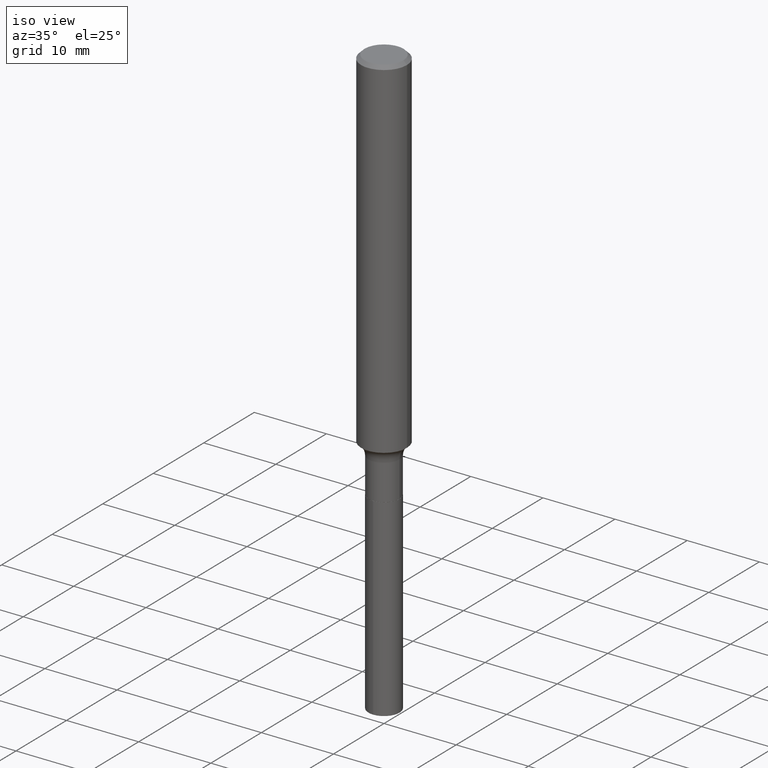
[diagram: clean part render]
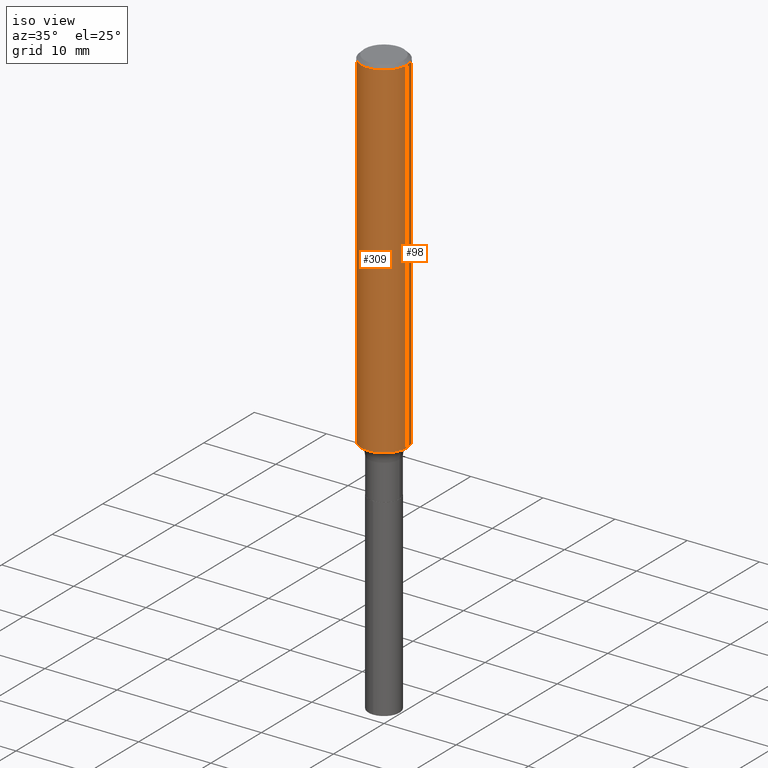
[diagram: same view with one multi-face feature highlighted, each face labeled with its STEP entity id]
A machine part, iso view. The highlighted faces form ONE feature: a constant-radius fillet chain: 2 tangent blend faces with common blend radius 3.175 mm. The faces share edges in the B-rep.
Their STEP definitions:
[1] entity #309 (Cylinder):
#22 = DIRECTION ( 'NONE',  ( -2.445468806185136597E-29, 3.491481338843145583E-15, 1.000000000000000000 ) ) ;
#40 = CARTESIAN_POINT ( 'NONE',  ( 0.1250000000000000000, -9.383356098140928781E-16, -0.01875000000000014155 ) ) ;
#49 = ORIENTED_EDGE ( 'NONE', *, *, #423, .F. ) ;
#75 = VECTOR ( 'NONE', #108, 39.37007874015748143 ) ;
#82 = AXIS2_PLACEMENT_3D ( 'NONE', #107, #147, #187 ) ;
#87 = ORIENTED_EDGE ( 'NONE', *, *, #302, .T. ) ;
#88 = DIRECTION ( 'NONE',  ( -2.445468806185136597E-29, 3.491481338843145583E-15, 1.000000000000000000 ) ) ;
#93 = CYLINDRICAL_SURFACE ( 'NONE', #468, 0.1250000000000001110 ) ;
#107 = CARTESIAN_POINT ( 'NONE',  ( 4.585254011597165626E-31, -6.546527510330947764E-17, -0.01875000000000014155 ) ) ;
#108 = DIRECTION ( 'NONE',  ( -2.445468806185136877E-29, 3.491481338843145188E-15, 1.000000000000000000 ) ) ;
#136 = LINE ( 'NONE', #415, #75 ) ;
#143 = VERTEX_POINT ( 'NONE', #232 ) ;
#147 = DIRECTION ( 'NONE',  ( -2.445468806185136597E-29, 3.491481338843145583E-15, 1.000000000000000000 ) ) ;
#187 = DIRECTION ( 'NONE',  ( 1.000000000000000000, -6.982962677686266711E-15, 0.000000000000000000 ) ) ;
#188 = VECTOR ( 'NONE', #202, 39.37007874015748143 ) ;
#197 = VERTEX_POINT ( 'NONE', #339 ) ;
#202 = DIRECTION ( 'NONE',  ( -2.445468806185136877E-29, 3.491481338843145188E-15, 1.000000000000000000 ) ) ;
#204 = ORIENTED_EDGE ( 'NONE', *, *, #365, .F. ) ;
#211 = LINE ( 'NONE', #331, #188 ) ;
#232 = CARTESIAN_POINT ( 'NONE',  ( 0.1250000000000001943, -7.528833404774743812E-15, -1.906343590044597303 ) ) ;
#239 = CARTESIAN_POINT ( 'NONE',  ( 0.000000000000000000, 0.000000000000000000, 0.000000000000000000 ) ) ;
#263 = EDGE_CURVE ( 'NONE', #143, #466, #211, .T. ) ;
#289 = EDGE_LOOP ( 'NONE', ( #49, #87, #369, #204 ) ) ;
#290 = CIRCLE ( 'NONE', #437, 0.1250000000000002498 ) ;
#302 = EDGE_CURVE ( 'NONE', #197, #143, #290, .T. ) ;
#309 = ADVANCED_FACE ( 'NONE', ( #445 ), #93, .T. ) ;
#331 = CARTESIAN_POINT ( 'NONE',  ( 0.1250000000000001110, -8.728703347107842263E-16, 6.095220969744926047E-30 ) ) ;
#339 = CARTESIAN_POINT ( 'NONE',  ( -0.1250000000000001943, -5.767784650363833663E-15, -1.906343590044597303 ) ) ;
#352 = VERTEX_POINT ( 'NONE', #457 ) ;
#365 = EDGE_CURVE ( 'NONE', #352, #466, #370, .T. ) ;
#369 = ORIENTED_EDGE ( 'NONE', *, *, #263, .T. ) ;
#370 = CIRCLE ( 'NONE', #82, 0.1250000000000000000 ) ;
#405 = DIRECTION ( 'NONE',  ( 1.000000000000000000, -6.982962677686264344E-15, 0.000000000000000000 ) ) ;
#409 = DIRECTION ( 'NONE',  ( 1.000000000000000000, -6.982962677686267499E-15, 4.876176775795936353E-29 ) ) ;
#415 = CARTESIAN_POINT ( 'NONE',  ( -0.1250000000000001110, 8.881784197001260212E-16, -6.148668862818637832E-30 ) ) ;
#423 = EDGE_CURVE ( 'NONE', #197, #352, #136, .T. ) ;
#437 = AXIS2_PLACEMENT_3D ( 'NONE', #486, #88, #405 ) ;
#445 = FACE_OUTER_BOUND ( 'NONE', #289, .T. ) ;
#457 = CARTESIAN_POINT ( 'NONE',  ( -0.1250000000000000000, -2.472535752883506421E-15, -0.01875000000000014155 ) ) ;
#466 = VERTEX_POINT ( 'NONE', #40 ) ;
#468 = AXIS2_PLACEMENT_3D ( 'NONE', #239, #22, #409 ) ;
#486 = CARTESIAN_POINT ( 'NONE',  ( 4.661903783325048642E-29, -6.655963070063959684E-15, -1.906343590044597303 ) ) ;
[2] entity #98 (Cylinder):
#16 = CARTESIAN_POINT ( 'NONE',  ( 0.000000000000000000, 0.000000000000000000, 0.000000000000000000 ) ) ;
#26 = ORIENTED_EDGE ( 'NONE', *, *, #78, .F. ) ;
#40 = CARTESIAN_POINT ( 'NONE',  ( 0.1250000000000000000, -9.383356098140928781E-16, -0.01875000000000014155 ) ) ;
#47 = CIRCLE ( 'NONE', #148, 0.1250000000000002498 ) ;
#72 = DIRECTION ( 'NONE',  ( -2.445468806185136597E-29, 3.491481338843145583E-15, 1.000000000000000000 ) ) ;
#75 = VECTOR ( 'NONE', #108, 39.37007874015748143 ) ;
#76 = DIRECTION ( 'NONE',  ( 1.000000000000000000, -6.982962677686267499E-15, 4.876176775795936353E-29 ) ) ;
#78 = EDGE_CURVE ( 'NONE', #466, #352, #257, .T. ) ;
#98 = ADVANCED_FACE ( 'NONE', ( #268 ), #358, .T. ) ;
#108 = DIRECTION ( 'NONE',  ( -2.445468806185136877E-29, 3.491481338843145188E-15, 1.000000000000000000 ) ) ;
#136 = LINE ( 'NONE', #415, #75 ) ;
#143 = VERTEX_POINT ( 'NONE', #232 ) ;
#148 = AXIS2_PLACEMENT_3D ( 'NONE', #306, #72, #300 ) ;
#171 = ORIENTED_EDGE ( 'NONE', *, *, #263, .F. ) ;
#188 = VECTOR ( 'NONE', #202, 39.37007874015748143 ) ;
#193 = CARTESIAN_POINT ( 'NONE',  ( 4.585254011597165626E-31, -6.546527510330947764E-17, -0.01875000000000014155 ) ) ;
#197 = VERTEX_POINT ( 'NONE', #339 ) ;
#202 = DIRECTION ( 'NONE',  ( -2.445468806185136877E-29, 3.491481338843145188E-15, 1.000000000000000000 ) ) ;
#211 = LINE ( 'NONE', #331, #188 ) ;
#222 = AXIS2_PLACEMENT_3D ( 'NONE', #193, #398, #312 ) ;
#232 = CARTESIAN_POINT ( 'NONE',  ( 0.1250000000000001943, -7.528833404774743812E-15, -1.906343590044597303 ) ) ;
#257 = CIRCLE ( 'NONE', #222, 0.1250000000000000000 ) ;
#263 = EDGE_CURVE ( 'NONE', #143, #466, #211, .T. ) ;
#268 = FACE_OUTER_BOUND ( 'NONE', #425, .T. ) ;
#299 = AXIS2_PLACEMENT_3D ( 'NONE', #16, #325, #76 ) ;
#300 = DIRECTION ( 'NONE',  ( 1.000000000000000000, -6.982962677686264344E-15, 0.000000000000000000 ) ) ;
#306 = CARTESIAN_POINT ( 'NONE',  ( 4.661903783325048642E-29, -6.655963070063959684E-15, -1.906343590044597303 ) ) ;
#312 = DIRECTION ( 'NONE',  ( 1.000000000000000000, -6.982962677686266711E-15, 0.000000000000000000 ) ) ;
#325 = DIRECTION ( 'NONE',  ( -2.445468806185136597E-29, 3.491481338843145583E-15, 1.000000000000000000 ) ) ;
#331 = CARTESIAN_POINT ( 'NONE',  ( 0.1250000000000001110, -8.728703347107842263E-16, 6.095220969744926047E-30 ) ) ;
#333 = ORIENTED_EDGE ( 'NONE', *, *, #387, .T. ) ;
#339 = CARTESIAN_POINT ( 'NONE',  ( -0.1250000000000001943, -5.767784650363833663E-15, -1.906343590044597303 ) ) ;
#352 = VERTEX_POINT ( 'NONE', #457 ) ;
#358 = CYLINDRICAL_SURFACE ( 'NONE', #299, 0.1250000000000001110 ) ;
#387 = EDGE_CURVE ( 'NONE', #143, #197, #47, .T. ) ;
#398 = DIRECTION ( 'NONE',  ( -2.445468806185136597E-29, 3.491481338843145583E-15, 1.000000000000000000 ) ) ;
#415 = CARTESIAN_POINT ( 'NONE',  ( -0.1250000000000001110, 8.881784197001260212E-16, -6.148668862818637832E-30 ) ) ;
#423 = EDGE_CURVE ( 'NONE', #197, #352, #136, .T. ) ;
#425 = EDGE_LOOP ( 'NONE', ( #333, #477, #26, #171 ) ) ;
#457 = CARTESIAN_POINT ( 'NONE',  ( -0.1250000000000000000, -2.472535752883506421E-15, -0.01875000000000014155 ) ) ;
#466 = VERTEX_POINT ( 'NONE', #40 ) ;
#477 = ORIENTED_EDGE ( 'NONE', *, *, #423, .T. ) ;